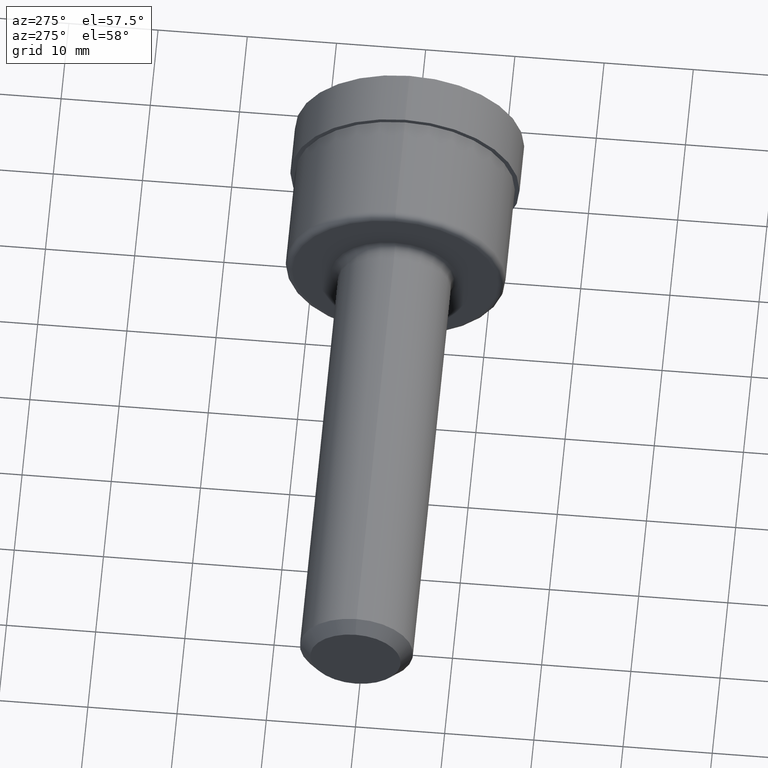
[diagram: clean part render]
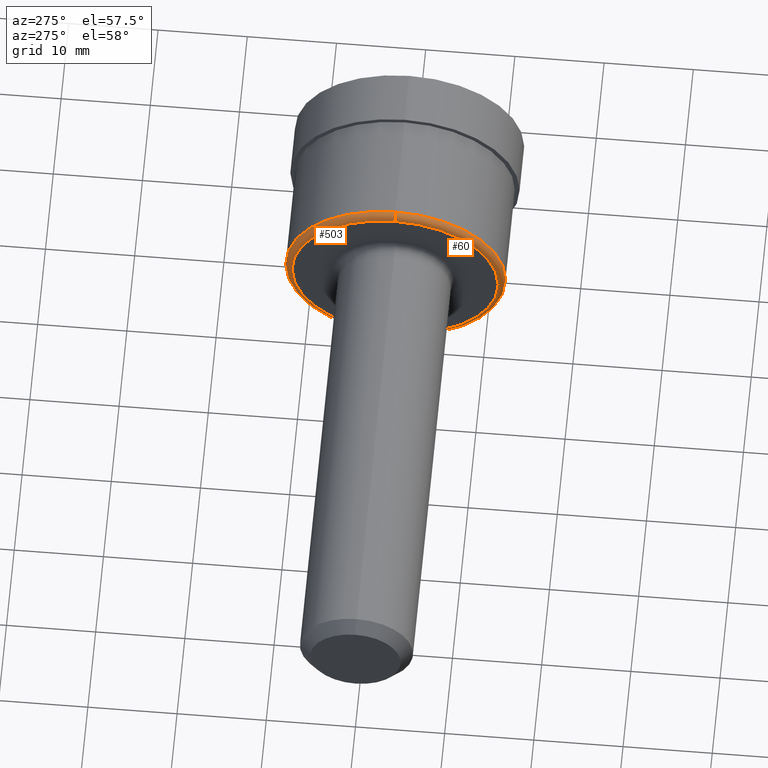
[diagram: same view with one multi-face feature highlighted, each face labeled with its STEP entity id]
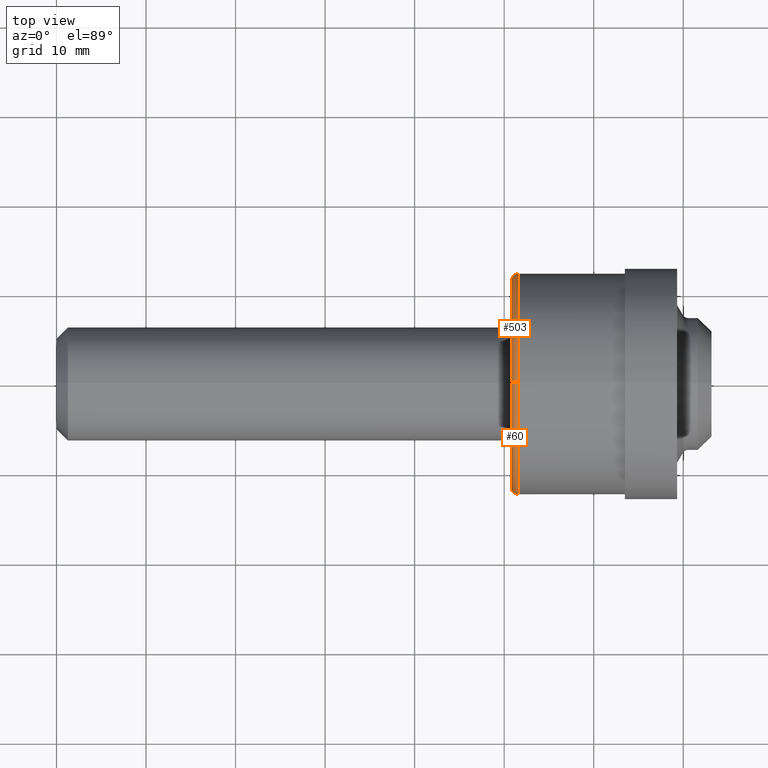
[diagram: same view with one multi-face feature highlighted, each face labeled with its STEP entity id]
A machine part, auxiliary view. The highlighted faces form ONE feature: a constant-radius fillet chain: 2 tangent blend faces with common blend radius 0.762 mm. The faces share edges in the B-rep.
A second angle (top view) of the same feature is appended — it is thin or edge-on in the first view.
Their STEP definitions:
[1] entity #60 (Torus):
#10 = EDGE_CURVE ( 'NONE', #592, #184, #463, .T. ) ;
#20 = AXIS2_PLACEMENT_3D ( 'NONE', #542, #640, #153 ) ;
#32 = AXIS2_PLACEMENT_3D ( 'NONE', #492, #693, #319 ) ;
#40 = EDGE_CURVE ( 'NONE', #311, #283, #207, .T. ) ;
#60 = ADVANCED_FACE ( 'NONE', ( #429 ), #449, .T. ) ;
#108 = DIRECTION ( 'NONE',  ( 0.000000000000000000, 0.000000000000000000, 1.000000000000000000 ) ) ;
#118 = AXIS2_PLACEMENT_3D ( 'NONE', #211, #547, #108 ) ;
#150 = DIRECTION ( 'NONE',  ( 0.000000000000000000, -1.224646799147352221E-16, 1.000000000000000000 ) ) ;
#153 = DIRECTION ( 'NONE',  ( 0.000000000000000000, 0.000000000000000000, 1.000000000000000000 ) ) ;
#184 = VERTEX_POINT ( 'NONE', #389 ) ;
#196 = AXIS2_PLACEMENT_3D ( 'NONE', #637, #591, #639 ) ;
#207 = CIRCLE ( 'NONE', #32, 0.03000000000000002318 ) ;
#211 = CARTESIAN_POINT ( 'NONE',  ( 2.000000000000000000, 0.000000000000000000, 0.000000000000000000 ) ) ;
#240 = ORIENTED_EDGE ( 'NONE', *, *, #40, .T. ) ;
#283 = VERTEX_POINT ( 'NONE', #459 ) ;
#297 = ORIENTED_EDGE ( 'NONE', *, *, #475, .T. ) ;
#299 = CARTESIAN_POINT ( 'NONE',  ( 2.029999999999999805, 5.572142936120457080E-17, -0.4550000000000000155 ) ) ;
#303 = ORIENTED_EDGE ( 'NONE', *, *, #515, .F. ) ;
#311 = VERTEX_POINT ( 'NONE', #630 ) ;
#319 = DIRECTION ( 'NONE',  ( 0.000000000000000000, 0.000000000000000000, -1.000000000000000000 ) ) ;
#389 = CARTESIAN_POINT ( 'NONE',  ( 2.000000000000000000, 5.755839955992559655E-17, -0.4550000000000000155 ) ) ;
#394 = EDGE_LOOP ( 'NONE', ( #566, #297, #240, #303 ) ) ;
#424 = DIRECTION ( 'NONE',  ( -0.000000000000000000, 1.000000000000000000, 1.224646799147353207E-16 ) ) ;
#429 = FACE_OUTER_BOUND ( 'NONE', #394, .T. ) ;
#438 = CARTESIAN_POINT ( 'NONE',  ( 2.029999999999999805, 5.939536975864663462E-17, -0.4850000000000000422 ) ) ;
#449 = TOROIDAL_SURFACE ( 'NONE', #196, 0.4550000000000000155, 0.02999999999999998848 ) ;
#459 = CARTESIAN_POINT ( 'NONE',  ( 2.000000000000000000, 0.000000000000000000, 0.4550000000000000155 ) ) ;
#463 = CIRCLE ( 'NONE', #587, 0.03000000000000002318 ) ;
#475 = EDGE_CURVE ( 'NONE', #592, #311, #690, .T. ) ;
#492 = CARTESIAN_POINT ( 'NONE',  ( 2.029999999999999805, 0.000000000000000000, 0.4550000000000000155 ) ) ;
#515 = EDGE_CURVE ( 'NONE', #184, #283, #655, .T. ) ;
#542 = CARTESIAN_POINT ( 'NONE',  ( 2.029999999999999805, 0.000000000000000000, 0.000000000000000000 ) ) ;
#547 = DIRECTION ( 'NONE',  ( -1.000000000000000000, -0.000000000000000000, -0.000000000000000000 ) ) ;
#566 = ORIENTED_EDGE ( 'NONE', *, *, #10, .F. ) ;
#587 = AXIS2_PLACEMENT_3D ( 'NONE', #299, #424, #150 ) ;
#591 = DIRECTION ( 'NONE',  ( -1.000000000000000000, -0.000000000000000000, -0.000000000000000000 ) ) ;
#592 = VERTEX_POINT ( 'NONE', #438 ) ;
#630 = CARTESIAN_POINT ( 'NONE',  ( 2.029999999999999805, 0.000000000000000000, 0.4850000000000000422 ) ) ;
#637 = CARTESIAN_POINT ( 'NONE',  ( 2.029999999999999805, 0.000000000000000000, 0.000000000000000000 ) ) ;
#639 = DIRECTION ( 'NONE',  ( 0.000000000000000000, 0.000000000000000000, 1.000000000000000000 ) ) ;
#640 = DIRECTION ( 'NONE',  ( -1.000000000000000000, -0.000000000000000000, -0.000000000000000000 ) ) ;
#655 = CIRCLE ( 'NONE', #118, 0.4550000000000000155 ) ;
#690 = CIRCLE ( 'NONE', #20, 0.4850000000000000422 ) ;
#693 = DIRECTION ( 'NONE',  ( 0.000000000000000000, -1.000000000000000000, 0.000000000000000000 ) ) ;
[2] entity #503 (Torus):
#3 = ORIENTED_EDGE ( 'NONE', *, *, #599, .F. ) ;
#10 = EDGE_CURVE ( 'NONE', #592, #184, #463, .T. ) ;
#32 = AXIS2_PLACEMENT_3D ( 'NONE', #492, #693, #319 ) ;
#40 = EDGE_CURVE ( 'NONE', #311, #283, #207, .T. ) ;
#70 = EDGE_LOOP ( 'NONE', ( #579, #169, #3, #143 ) ) ;
#102 = DIRECTION ( 'NONE',  ( -1.000000000000000000, -0.000000000000000000, -0.000000000000000000 ) ) ;
#143 = ORIENTED_EDGE ( 'NONE', *, *, #40, .F. ) ;
#150 = DIRECTION ( 'NONE',  ( 0.000000000000000000, -1.224646799147352221E-16, 1.000000000000000000 ) ) ;
#169 = ORIENTED_EDGE ( 'NONE', *, *, #10, .T. ) ;
#175 = DIRECTION ( 'NONE',  ( -1.000000000000000000, -0.000000000000000000, -0.000000000000000000 ) ) ;
#184 = VERTEX_POINT ( 'NONE', #389 ) ;
#207 = CIRCLE ( 'NONE', #32, 0.03000000000000002318 ) ;
#208 = DIRECTION ( 'NONE',  ( 0.000000000000000000, 0.000000000000000000, 1.000000000000000000 ) ) ;
#273 = CARTESIAN_POINT ( 'NONE',  ( 2.029999999999999805, 0.000000000000000000, 0.000000000000000000 ) ) ;
#283 = VERTEX_POINT ( 'NONE', #459 ) ;
#299 = CARTESIAN_POINT ( 'NONE',  ( 2.029999999999999805, 5.572142936120457080E-17, -0.4550000000000000155 ) ) ;
#311 = VERTEX_POINT ( 'NONE', #630 ) ;
#319 = DIRECTION ( 'NONE',  ( 0.000000000000000000, 0.000000000000000000, -1.000000000000000000 ) ) ;
#320 = DIRECTION ( 'NONE',  ( -1.000000000000000000, -0.000000000000000000, -0.000000000000000000 ) ) ;
#369 = DIRECTION ( 'NONE',  ( 0.000000000000000000, 0.000000000000000000, 1.000000000000000000 ) ) ;
#389 = CARTESIAN_POINT ( 'NONE',  ( 2.000000000000000000, 5.755839955992559655E-17, -0.4550000000000000155 ) ) ;
#413 = AXIS2_PLACEMENT_3D ( 'NONE', #486, #102, #208 ) ;
#424 = DIRECTION ( 'NONE',  ( -0.000000000000000000, 1.000000000000000000, 1.224646799147353207E-16 ) ) ;
#438 = CARTESIAN_POINT ( 'NONE',  ( 2.029999999999999805, 5.939536975864663462E-17, -0.4850000000000000422 ) ) ;
#450 = AXIS2_PLACEMENT_3D ( 'NONE', #273, #320, #369 ) ;
#459 = CARTESIAN_POINT ( 'NONE',  ( 2.000000000000000000, 0.000000000000000000, 0.4550000000000000155 ) ) ;
#463 = CIRCLE ( 'NONE', #587, 0.03000000000000002318 ) ;
#486 = CARTESIAN_POINT ( 'NONE',  ( 2.029999999999999805, 0.000000000000000000, 0.000000000000000000 ) ) ;
#492 = CARTESIAN_POINT ( 'NONE',  ( 2.029999999999999805, 0.000000000000000000, 0.4550000000000000155 ) ) ;
#494 = CIRCLE ( 'NONE', #653, 0.4550000000000000155 ) ;
#500 = DIRECTION ( 'NONE',  ( 0.000000000000000000, 0.000000000000000000, 1.000000000000000000 ) ) ;
#503 = ADVANCED_FACE ( 'NONE', ( #530 ), #529, .T. ) ;
#520 = CIRCLE ( 'NONE', #413, 0.4850000000000000422 ) ;
#529 = TOROIDAL_SURFACE ( 'NONE', #450, 0.4550000000000000155, 0.02999999999999998848 ) ;
#530 = FACE_OUTER_BOUND ( 'NONE', #70, .T. ) ;
#546 = EDGE_CURVE ( 'NONE', #311, #592, #520, .T. ) ;
#579 = ORIENTED_EDGE ( 'NONE', *, *, #546, .T. ) ;
#587 = AXIS2_PLACEMENT_3D ( 'NONE', #299, #424, #150 ) ;
#592 = VERTEX_POINT ( 'NONE', #438 ) ;
#599 = EDGE_CURVE ( 'NONE', #283, #184, #494, .T. ) ;
#630 = CARTESIAN_POINT ( 'NONE',  ( 2.029999999999999805, 0.000000000000000000, 0.4850000000000000422 ) ) ;
#646 = CARTESIAN_POINT ( 'NONE',  ( 2.000000000000000000, 0.000000000000000000, 0.000000000000000000 ) ) ;
#653 = AXIS2_PLACEMENT_3D ( 'NONE', #646, #175, #500 ) ;
#693 = DIRECTION ( 'NONE',  ( 0.000000000000000000, -1.000000000000000000, 0.000000000000000000 ) ) ;